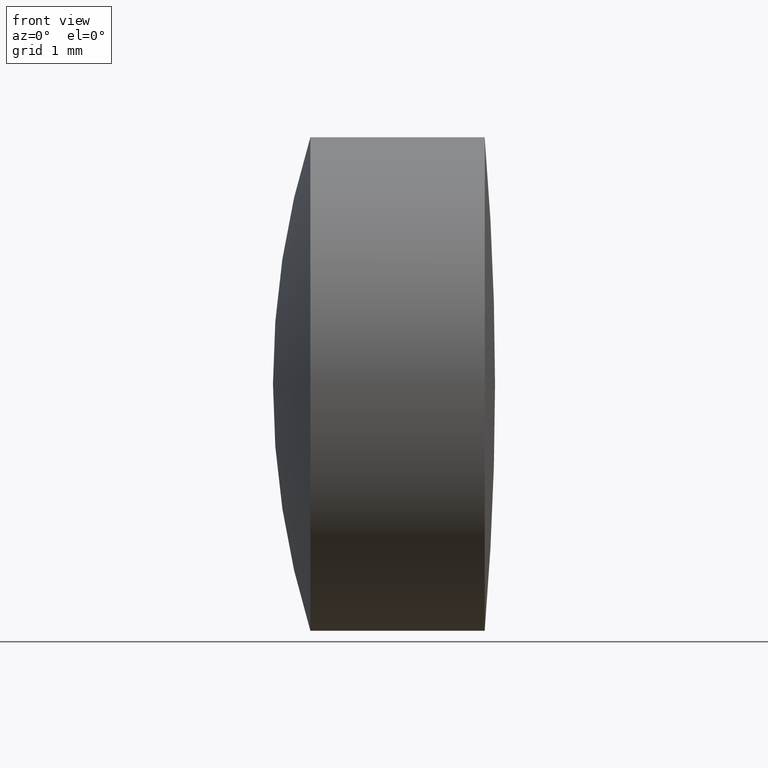
[diagram: clean part render]
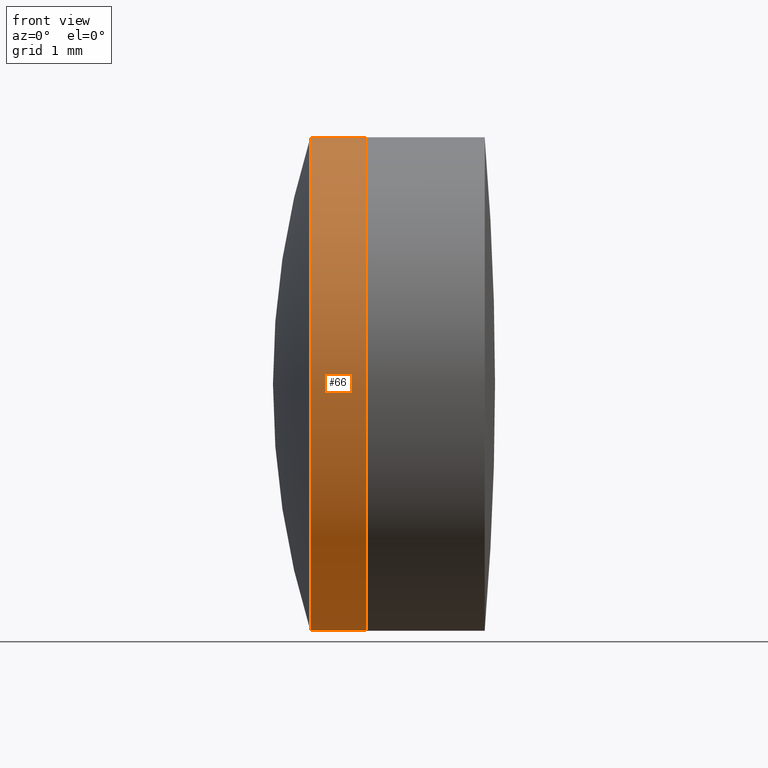
[diagram: same view with one face highlighted and labeled with its STEP entity id]
A machine part, front view. The second image highlights one B-rep face of the part: STEP entity #66.
In plain terms, the highlighted cylindrical surface (partial cylindrical patch) has radius 4 mm, axis along (-1, -0, -0).
Its self-contained STEP definition (entity closure, byte-faithful):
#3 = ORIENTED_EDGE ( 'NONE', *, *, #326, .T. ) ;
#11 = CARTESIAN_POINT ( 'NONE',  ( 267.3193874442736700, 0.0000000000000000000, 3.999999999999998200 ) ) ;
#22 = DIRECTION ( 'NONE',  ( -1.000000000000000000, -0.0000000000000000000, -0.0000000000000000000 ) ) ;
#41 = EDGE_LOOP ( 'NONE', ( #82, #227, #3, #223 ) ) ;
#42 = CARTESIAN_POINT ( 'NONE',  ( 266.4092775325995600, 0.0000000000000000000, 0.0000000000000000000 ) ) ;
#48 = LINE ( 'NONE', #241, #218 ) ;
#63 = DIRECTION ( 'NONE',  ( 0.0000000000000000000, 0.0000000000000000000, 1.000000000000000000 ) ) ;
#66 = ADVANCED_FACE ( 'NONE', ( #196 ), #69, .T. ) ;
#69 = CYLINDRICAL_SURFACE ( 'NONE', #344, 3.999999999999998200 ) ;
#73 = DIRECTION ( 'NONE',  ( -1.000000000000000000, -0.0000000000000000000, -0.0000000000000000000 ) ) ;
#82 = ORIENTED_EDGE ( 'NONE', *, *, #217, .F. ) ;
#83 = VERTEX_POINT ( 'NONE', #324 ) ;
#84 = AXIS2_PLACEMENT_3D ( 'NONE', #172, #186, #225 ) ;
#88 = CARTESIAN_POINT ( 'NONE',  ( 266.4092775325995600, 0.0000000000000000000, 3.999999999999999100 ) ) ;
#124 = VERTEX_POINT ( 'NONE', #88 ) ;
#150 = EDGE_CURVE ( 'NONE', #83, #124, #239, .T. ) ;
#172 = CARTESIAN_POINT ( 'NONE',  ( 267.3193874442736700, 0.0000000000000000000, 0.0000000000000000000 ) ) ;
#186 = DIRECTION ( 'NONE',  ( -1.000000000000000000, -0.0000000000000000000, -0.0000000000000000000 ) ) ;
#196 = FACE_OUTER_BOUND ( 'NONE', #41, .T. ) ;
#205 = DIRECTION ( 'NONE',  ( 0.0000000000000000000, 0.0000000000000000000, 1.000000000000000000 ) ) ;
#211 = CARTESIAN_POINT ( 'NONE',  ( 267.3193874442736700, 4.898587196589410900E-016, -3.999999999999998200 ) ) ;
#216 = AXIS2_PLACEMENT_3D ( 'NONE', #42, #22, #205 ) ;
#217 = EDGE_CURVE ( 'NONE', #321, #83, #325, .T. ) ;
#218 = VECTOR ( 'NONE', #287, 1000.000000000000000 ) ;
#222 = EDGE_CURVE ( 'NONE', #321, #243, #333, .T. ) ;
#223 = ORIENTED_EDGE ( 'NONE', *, *, #150, .F. ) ;
#225 = DIRECTION ( 'NONE',  ( 0.0000000000000000000, 0.0000000000000000000, 1.000000000000000000 ) ) ;
#227 = ORIENTED_EDGE ( 'NONE', *, *, #222, .T. ) ;
#239 = CIRCLE ( 'NONE', #216, 3.999999999999999100 ) ;
#241 = CARTESIAN_POINT ( 'NONE',  ( 124.5233095260452400, 0.0000000000000000000, 3.999999999999998200 ) ) ;
#243 = VERTEX_POINT ( 'NONE', #11 ) ;
#286 = VECTOR ( 'NONE', #73, 1000.000000000000000 ) ;
#287 = DIRECTION ( 'NONE',  ( -1.000000000000000000, -0.0000000000000000000, -0.0000000000000000000 ) ) ;
#293 = DIRECTION ( 'NONE',  ( -1.000000000000000000, -0.0000000000000000000, -0.0000000000000000000 ) ) ;
#294 = CARTESIAN_POINT ( 'NONE',  ( 124.5233095260452400, 0.0000000000000000000, 0.0000000000000000000 ) ) ;
#321 = VERTEX_POINT ( 'NONE', #211 ) ;
#324 = CARTESIAN_POINT ( 'NONE',  ( 266.4092775325995600, 4.898587196589411800E-016, -4.000000000000000900 ) ) ;
#325 = LINE ( 'NONE', #335, #286 ) ;
#326 = EDGE_CURVE ( 'NONE', #243, #124, #48, .T. ) ;
#333 = CIRCLE ( 'NONE', #84, 3.999999999999998200 ) ;
#335 = CARTESIAN_POINT ( 'NONE',  ( 124.5233095260452400, 4.898587196589410900E-016, -3.999999999999998200 ) ) ;
#344 = AXIS2_PLACEMENT_3D ( 'NONE', #294, #293, #63 ) ;